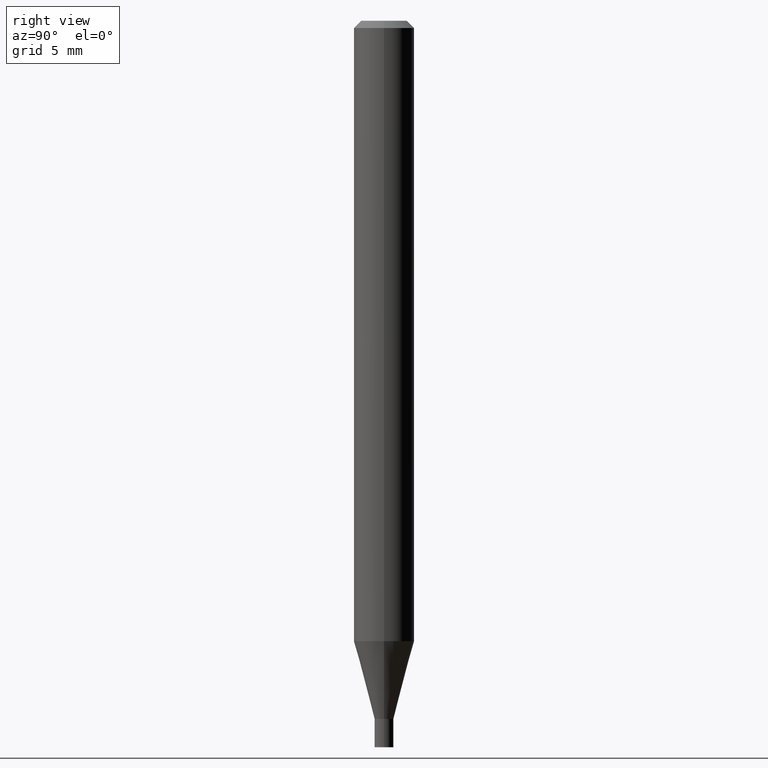
[diagram: clean part render]
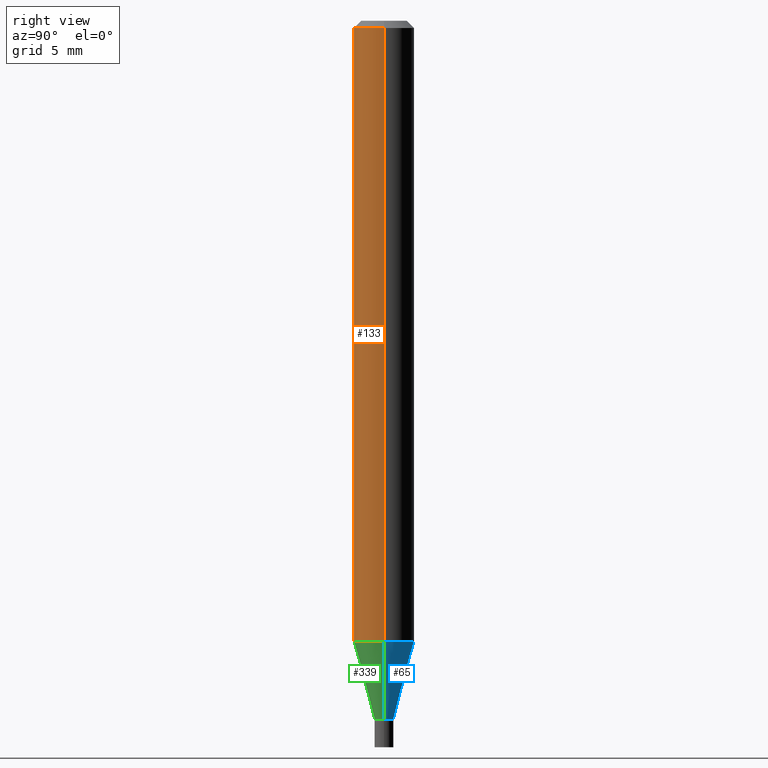
[diagram: same view with three faces highlighted in distinct colors, each labeled with its STEP entity id]
A machine part, right view with three faces highlighted in distinct colors.
Their STEP definitions:

[orange] entity #133 — the highlighted cylindrical surface (edge-blend (fillet) strip) has radius 1.5875 mm, axis along (-0, 0, 1).
#15 = CARTESIAN_POINT ( 'NONE',  ( 3.668203209277705088E-31, -5.237222008264718399E-17, -0.01499999999999999944 ) ) ;
#38 = VERTEX_POINT ( 'NONE', #415 ) ;
#58 = VERTEX_POINT ( 'NONE', #300 ) ;
#67 = DIRECTION ( 'NONE',  ( -2.445468806185136597E-29, 3.491481338843145583E-15, 1.000000000000000000 ) ) ;
#68 = CARTESIAN_POINT ( 'NONE',  ( -0.06250000000000000000, -4.028574552831956093E-15, -1.281021815274537401 ) ) ;
#73 = DIRECTION ( 'NONE',  ( -2.445468806185136597E-29, 3.491481338843145583E-15, 1.000000000000000000 ) ) ;
#104 = AXIS2_PLACEMENT_3D ( 'NONE', #267, #67, #209 ) ;
#110 = EDGE_CURVE ( 'NONE', #38, #242, #408, .T. ) ;
#117 = FACE_OUTER_BOUND ( 'NONE', #167, .T. ) ;
#123 = DIRECTION ( 'NONE',  ( -2.445468806185136597E-29, 3.491481338843145583E-15, 1.000000000000000000 ) ) ;
#133 = ADVANCED_FACE ( 'NONE', ( #117 ), #346, .T. ) ;
#147 = LINE ( 'NONE', #407, #332 ) ;
#157 = VECTOR ( 'NONE', #171, 39.37007874015748143 ) ;
#167 = EDGE_LOOP ( 'NONE', ( #460, #175, #185, #418 ) ) ;
#171 = DIRECTION ( 'NONE',  ( -2.445468806185136877E-29, 3.491481338843145188E-15, 1.000000000000000000 ) ) ;
#175 = ORIENTED_EDGE ( 'NONE', *, *, #462, .T. ) ;
#179 = CARTESIAN_POINT ( 'NONE',  ( -0.06250000000000000000, 4.440892098500626162E-16, -3.074334431409316114E-30 ) ) ;
#181 = AXIS2_PLACEMENT_3D ( 'NONE', #337, #73, #331 ) ;
#183 = CIRCLE ( 'NONE', #181, 0.06250000000000000000 ) ;
#185 = ORIENTED_EDGE ( 'NONE', *, *, #425, .T. ) ;
#201 = DIRECTION ( 'NONE',  ( 1.000000000000000000, -6.982962677686266711E-15, 0.000000000000000000 ) ) ;
#209 = DIRECTION ( 'NONE',  ( 1.000000000000000000, -6.982962677686266711E-15, 4.876176775795935793E-29 ) ) ;
#234 = AXIS2_PLACEMENT_3D ( 'NONE', #15, #123, #201 ) ;
#242 = VERTEX_POINT ( 'NONE', #364 ) ;
#267 = CARTESIAN_POINT ( 'NONE',  ( 0.000000000000000000, 0.000000000000000000, 0.000000000000000000 ) ) ;
#294 = EDGE_CURVE ( 'NONE', #307, #38, #362, .T. ) ;
#300 = CARTESIAN_POINT ( 'NONE',  ( 0.06250000000000000000, -4.909098930037410379E-15, -1.281021815274537401 ) ) ;
#307 = VERTEX_POINT ( 'NONE', #68 ) ;
#331 = DIRECTION ( 'NONE',  ( 1.000000000000000000, -6.982962677686262766E-15, 0.000000000000000000 ) ) ;
#332 = VECTOR ( 'NONE', #373, 39.37007874015748143 ) ;
#337 = CARTESIAN_POINT ( 'NONE',  ( 3.132698889296539192E-29, -4.472663762682018710E-15, -1.281021815274537401 ) ) ;
#346 = CYLINDRICAL_SURFACE ( 'NONE', #104, 0.06250000000000000000 ) ;
#362 = LINE ( 'NONE', #179, #157 ) ;
#364 = CARTESIAN_POINT ( 'NONE',  ( 0.06250000000000000000, -4.888073874380388472E-16, -0.01499999999999999944 ) ) ;
#373 = DIRECTION ( 'NONE',  ( -2.445468806185136877E-29, 3.491481338843145188E-15, 1.000000000000000000 ) ) ;
#407 = CARTESIAN_POINT ( 'NONE',  ( 0.06250000000000000000, -4.364351673553916694E-16, 3.047610484872459871E-30 ) ) ;
#408 = CIRCLE ( 'NONE', #234, 0.06250000000000000000 ) ;
#415 = CARTESIAN_POINT ( 'NONE',  ( -0.06250000000000000000, -1.818428781532270475E-15, -0.01499999999999999944 ) ) ;
#418 = ORIENTED_EDGE ( 'NONE', *, *, #110, .F. ) ;
#425 = EDGE_CURVE ( 'NONE', #58, #242, #147, .T. ) ;
#460 = ORIENTED_EDGE ( 'NONE', *, *, #294, .F. ) ;
#462 = EDGE_CURVE ( 'NONE', #307, #58, #183, .T. ) ;

[blue] entity #65 — the highlighted conical surface has half-angle 15 deg.
#2 = DIRECTION ( 'NONE',  ( -2.445468806185136597E-29, 3.491481338843145583E-15, 1.000000000000000000 ) ) ;
#11 = EDGE_CURVE ( 'NONE', #58, #307, #102, .T. ) ;
#17 = CARTESIAN_POINT ( 'NONE',  ( -0.01949999999999964262, -4.461494534650565994E-15, -1.441500000000000226 ) ) ;
#18 = DIRECTION ( 'NONE',  ( -0.2588190451025211281, 5.211531920934547886E-15, 0.9659258262890679791 ) ) ;
#34 = LINE ( 'NONE', #119, #286 ) ;
#35 = ORIENTED_EDGE ( 'NONE', *, *, #343, .T. ) ;
#36 = EDGE_CURVE ( 'NONE', #387, #307, #225, .T. ) ;
#43 = CONICAL_SURFACE ( 'NONE', #208, 0.01949999999999964262, 0.2617993877991498519 ) ;
#48 = ORIENTED_EDGE ( 'NONE', *, *, #11, .F. ) ;
#50 = FACE_OUTER_BOUND ( 'NONE', #420, .T. ) ;
#51 = CARTESIAN_POINT ( 'NONE',  ( 0.01949999999999964262, -5.169138122157274804E-15, -1.441500000000000226 ) ) ;
#58 = VERTEX_POINT ( 'NONE', #300 ) ;
#65 = ADVANCED_FACE ( 'NONE', ( #50 ), #43, .T. ) ;
#68 = CARTESIAN_POINT ( 'NONE',  ( -0.06250000000000000000, -4.028574552831956093E-15, -1.281021815274537401 ) ) ;
#81 = CARTESIAN_POINT ( 'NONE',  ( -0.01949999999999964262, -4.894414516469177472E-15, -1.441500000000000226 ) ) ;
#84 = CARTESIAN_POINT ( 'NONE',  ( 3.525143284115875149E-29, -5.032970349942394371E-15, -1.441500000000000226 ) ) ;
#97 = VECTOR ( 'NONE', #18, 39.37007874015748854 ) ;
#101 = CARTESIAN_POINT ( 'NONE',  ( 3.525143284115875149E-29, -5.032970349942394371E-15, -1.441500000000000226 ) ) ;
#102 = CIRCLE ( 'NONE', #374, 0.06250000000000000000 ) ;
#119 = CARTESIAN_POINT ( 'NONE',  ( 0.01949999999999964262, -5.169138122157274804E-15, -1.441500000000000226 ) ) ;
#120 = DIRECTION ( 'NONE',  ( 1.000000000000000000, -6.982962677686286432E-15, 0.000000000000000000 ) ) ;
#131 = ORIENTED_EDGE ( 'NONE', *, *, #254, .F. ) ;
#177 = DIRECTION ( 'NONE',  ( 1.000000000000000000, -6.982962677686286432E-15, 0.000000000000000000 ) ) ;
#208 = AXIS2_PLACEMENT_3D ( 'NONE', #84, #263, #120 ) ;
#210 = ORIENTED_EDGE ( 'NONE', *, *, #36, .T. ) ;
#225 = LINE ( 'NONE', #81, #97 ) ;
#254 = EDGE_CURVE ( 'NONE', #384, #58, #34, .T. ) ;
#263 = DIRECTION ( 'NONE',  ( -2.445468806185136597E-29, 3.491481338843145583E-15, 1.000000000000000000 ) ) ;
#271 = DIRECTION ( 'NONE',  ( -2.445468806185136597E-29, 3.491481338843145583E-15, 1.000000000000000000 ) ) ;
#286 = VECTOR ( 'NONE', #411, 39.37007874015748854 ) ;
#300 = CARTESIAN_POINT ( 'NONE',  ( 0.06250000000000000000, -4.909098930037410379E-15, -1.281021815274537401 ) ) ;
#304 = CARTESIAN_POINT ( 'NONE',  ( 3.132698889296539192E-29, -4.472663762682018710E-15, -1.281021815274537401 ) ) ;
#306 = DIRECTION ( 'NONE',  ( 1.000000000000000000, -6.982962677686262766E-15, 0.000000000000000000 ) ) ;
#307 = VERTEX_POINT ( 'NONE', #68 ) ;
#311 = CIRCLE ( 'NONE', #445, 0.01949999999999964262 ) ;
#343 = EDGE_CURVE ( 'NONE', #384, #387, #311, .T. ) ;
#374 = AXIS2_PLACEMENT_3D ( 'NONE', #304, #271, #306 ) ;
#384 = VERTEX_POINT ( 'NONE', #51 ) ;
#387 = VERTEX_POINT ( 'NONE', #17 ) ;
#411 = DIRECTION ( 'NONE',  ( 0.2588190451025211281, 1.565188264969622954E-15, 0.9659258262890679791 ) ) ;
#420 = EDGE_LOOP ( 'NONE', ( #35, #210, #48, #131 ) ) ;
#445 = AXIS2_PLACEMENT_3D ( 'NONE', #101, #2, #177 ) ;

[green] entity #339 — the highlighted conical surface has half-angle 15 deg.
#10 = CIRCLE ( 'NONE', #438, 0.01949999999999964262 ) ;
#17 = CARTESIAN_POINT ( 'NONE',  ( -0.01949999999999964262, -4.461494534650565994E-15, -1.441500000000000226 ) ) ;
#18 = DIRECTION ( 'NONE',  ( -0.2588190451025211281, 5.211531920934547886E-15, 0.9659258262890679791 ) ) ;
#34 = LINE ( 'NONE', #119, #286 ) ;
#36 = EDGE_CURVE ( 'NONE', #387, #307, #225, .T. ) ;
#51 = CARTESIAN_POINT ( 'NONE',  ( 0.01949999999999964262, -5.169138122157274804E-15, -1.441500000000000226 ) ) ;
#58 = VERTEX_POINT ( 'NONE', #300 ) ;
#68 = CARTESIAN_POINT ( 'NONE',  ( -0.06250000000000000000, -4.028574552831956093E-15, -1.281021815274537401 ) ) ;
#71 = FACE_OUTER_BOUND ( 'NONE', #126, .T. ) ;
#73 = DIRECTION ( 'NONE',  ( -2.445468806185136597E-29, 3.491481338843145583E-15, 1.000000000000000000 ) ) ;
#79 = CARTESIAN_POINT ( 'NONE',  ( 3.525143284115875149E-29, -5.032970349942394371E-15, -1.441500000000000226 ) ) ;
#81 = CARTESIAN_POINT ( 'NONE',  ( -0.01949999999999964262, -4.894414516469177472E-15, -1.441500000000000226 ) ) ;
#90 = AXIS2_PLACEMENT_3D ( 'NONE', #465, #287, #428 ) ;
#97 = VECTOR ( 'NONE', #18, 39.37007874015748854 ) ;
#119 = CARTESIAN_POINT ( 'NONE',  ( 0.01949999999999964262, -5.169138122157274804E-15, -1.441500000000000226 ) ) ;
#126 = EDGE_LOOP ( 'NONE', ( #149, #358, #316, #457 ) ) ;
#149 = ORIENTED_EDGE ( 'NONE', *, *, #36, .F. ) ;
#181 = AXIS2_PLACEMENT_3D ( 'NONE', #337, #73, #331 ) ;
#183 = CIRCLE ( 'NONE', #181, 0.06250000000000000000 ) ;
#225 = LINE ( 'NONE', #81, #97 ) ;
#229 = DIRECTION ( 'NONE',  ( 1.000000000000000000, -6.982962677686286432E-15, 0.000000000000000000 ) ) ;
#246 = EDGE_CURVE ( 'NONE', #387, #384, #10, .T. ) ;
#254 = EDGE_CURVE ( 'NONE', #384, #58, #34, .T. ) ;
#265 = DIRECTION ( 'NONE',  ( -2.445468806185136597E-29, 3.491481338843145583E-15, 1.000000000000000000 ) ) ;
#286 = VECTOR ( 'NONE', #411, 39.37007874015748854 ) ;
#287 = DIRECTION ( 'NONE',  ( -2.445468806185136597E-29, 3.491481338843145583E-15, 1.000000000000000000 ) ) ;
#300 = CARTESIAN_POINT ( 'NONE',  ( 0.06250000000000000000, -4.909098930037410379E-15, -1.281021815274537401 ) ) ;
#307 = VERTEX_POINT ( 'NONE', #68 ) ;
#316 = ORIENTED_EDGE ( 'NONE', *, *, #254, .T. ) ;
#331 = DIRECTION ( 'NONE',  ( 1.000000000000000000, -6.982962677686262766E-15, 0.000000000000000000 ) ) ;
#337 = CARTESIAN_POINT ( 'NONE',  ( 3.132698889296539192E-29, -4.472663762682018710E-15, -1.281021815274537401 ) ) ;
#339 = ADVANCED_FACE ( 'NONE', ( #71 ), #421, .T. ) ;
#358 = ORIENTED_EDGE ( 'NONE', *, *, #246, .T. ) ;
#384 = VERTEX_POINT ( 'NONE', #51 ) ;
#387 = VERTEX_POINT ( 'NONE', #17 ) ;
#411 = DIRECTION ( 'NONE',  ( 0.2588190451025211281, 1.565188264969622954E-15, 0.9659258262890679791 ) ) ;
#421 = CONICAL_SURFACE ( 'NONE', #90, 0.01949999999999964262, 0.2617993877991498519 ) ;
#428 = DIRECTION ( 'NONE',  ( 1.000000000000000000, -6.982962677686286432E-15, 0.000000000000000000 ) ) ;
#438 = AXIS2_PLACEMENT_3D ( 'NONE', #79, #265, #229 ) ;
#457 = ORIENTED_EDGE ( 'NONE', *, *, #462, .F. ) ;
#462 = EDGE_CURVE ( 'NONE', #307, #58, #183, .T. ) ;
#465 = CARTESIAN_POINT ( 'NONE',  ( 3.525143284115875149E-29, -5.032970349942394371E-15, -1.441500000000000226 ) ) ;